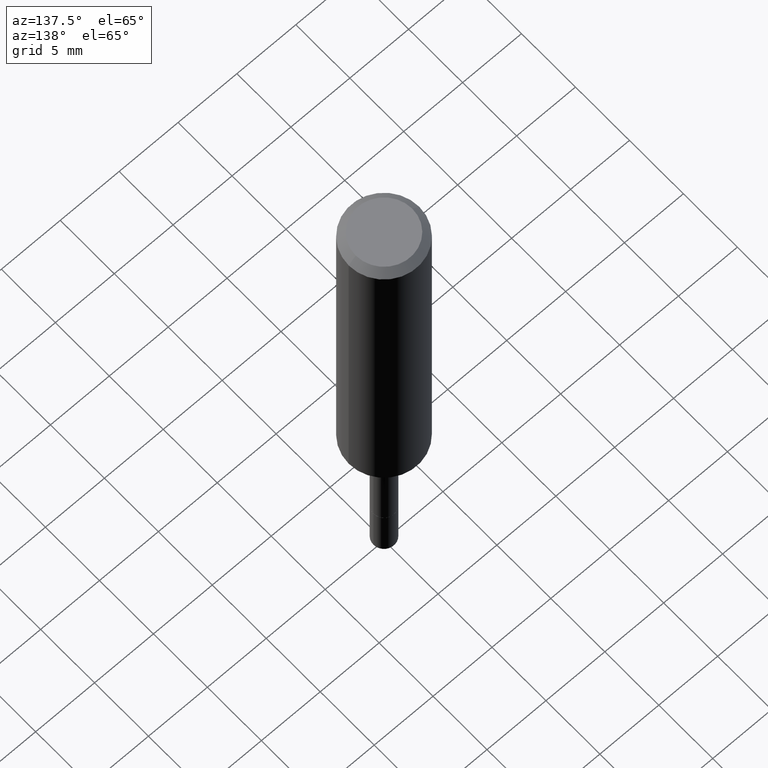
[diagram: clean part render]
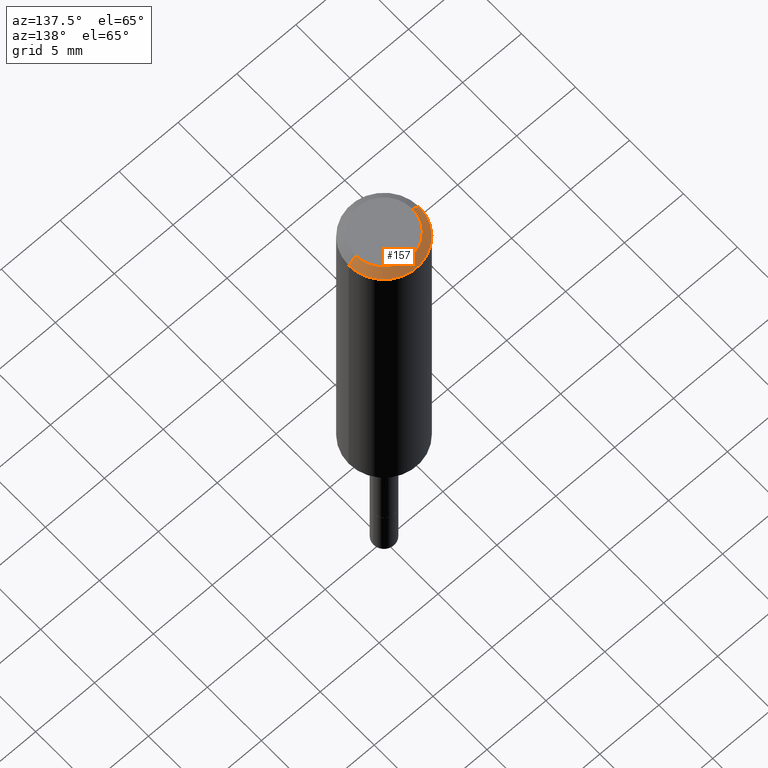
[diagram: same view with one face highlighted and labeled with its STEP entity id]
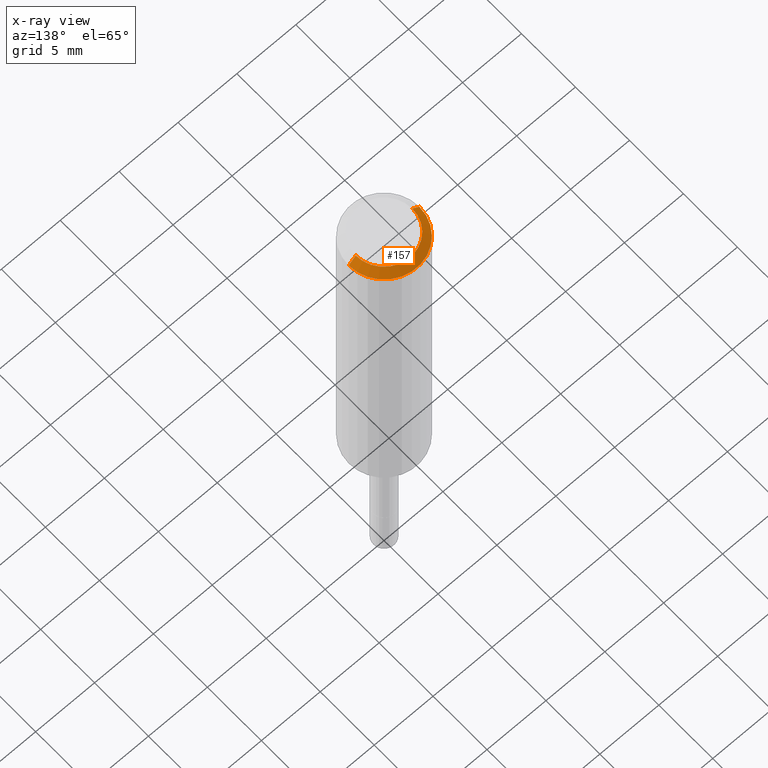
[diagram: x-ray of the same camera — body ghosted, the highlighted face saturated]
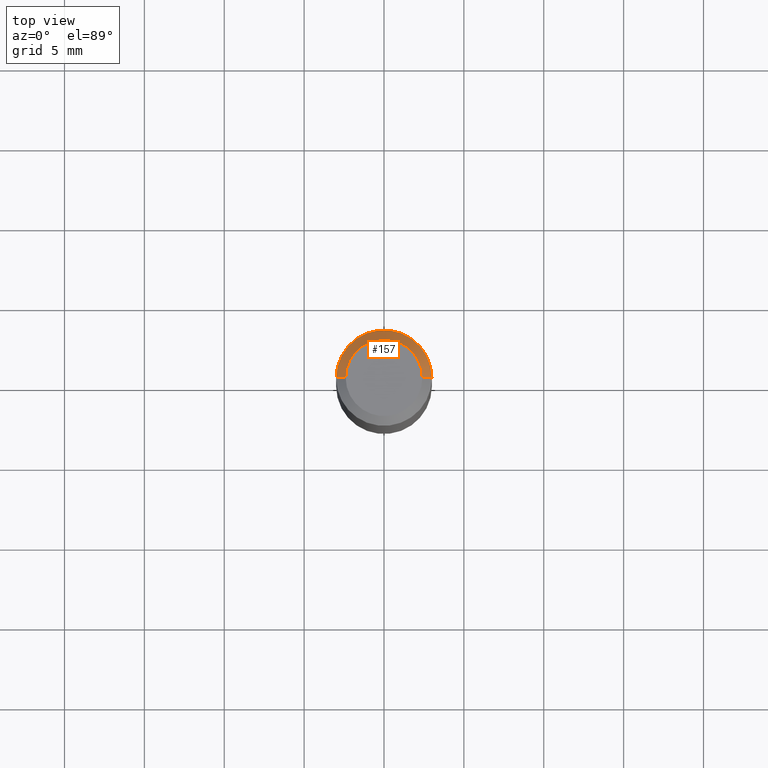
[diagram: same view with one face highlighted and labeled with its STEP entity id]
A machine part, auxiliary view. The second image highlights one B-rep face of the part: STEP entity #157.
The next image is the same camera in x-ray: the body ghosted, the highlighted face saturated — about 0% of this face is hidden behind the body in this view.
A second angle (top view) of the same face is appended — the face is thin or edge-on in the first view.
In plain terms, the highlighted conical surface has half-angle 45 deg.
Its self-contained STEP definition (entity closure, byte-faithful):
#12 = DIRECTION ( 'NONE',  ( 1.000000000000000000, -6.982962677686266711E-15, 0.000000000000000000 ) ) ;
#16 = EDGE_CURVE ( 'NONE', #393, #55, #269, .T. ) ;
#18 = CARTESIAN_POINT ( 'NONE',  ( 0.1180999999999999966, -8.926936027602933910E-16, -0.02362000000000013741 ) ) ;
#28 = EDGE_CURVE ( 'NONE', #55, #163, #118, .T. ) ;
#46 = DIRECTION ( 'NONE',  ( -0.7071067811865461294, 2.468850131082242072E-15, -0.7071067811865489050 ) ) ;
#52 = DIRECTION ( 'NONE',  ( -2.445468806185136597E-29, 3.491481338843145583E-15, 1.000000000000000000 ) ) ;
#55 = VERTEX_POINT ( 'NONE', #422 ) ;
#58 = ORIENTED_EDGE ( 'NONE', *, *, #28, .F. ) ;
#60 = DIRECTION ( 'NONE',  ( -1.000000000000000000, 6.982962677686266711E-15, 0.000000000000000000 ) ) ;
#74 = ORIENTED_EDGE ( 'NONE', *, *, #16, .F. ) ;
#100 = CARTESIAN_POINT ( 'NONE',  ( 5.776197320209326656E-31, -8.246878922347558061E-17, -0.02362000000000013741 ) ) ;
#103 = CARTESIAN_POINT ( 'NONE',  ( 0.09447999999999998066, -7.704367267948738690E-16, -3.085620075131172158E-17 ) ) ;
#118 = LINE ( 'NONE', #402, #472 ) ;
#143 = AXIS2_PLACEMENT_3D ( 'NONE', #457, #52, #12 ) ;
#157 = ADVANCED_FACE ( 'NONE', ( #244 ), #272, .T. ) ;
#158 = DIRECTION ( 'NONE',  ( -2.445468806185136597E-29, 3.491481338843145583E-15, 1.000000000000000000 ) ) ;
#163 = VERTEX_POINT ( 'NONE', #386 ) ;
#188 = ORIENTED_EDGE ( 'NONE', *, *, #239, .T. ) ;
#230 = ORIENTED_EDGE ( 'NONE', *, *, #326, .T. ) ;
#235 = DIRECTION ( 'NONE',  ( 1.000000000000000000, -6.982962677686267499E-15, 4.875432709231658792E-29 ) ) ;
#239 = EDGE_CURVE ( 'NONE', #393, #387, #367, .T. ) ;
#244 = FACE_OUTER_BOUND ( 'NONE', #341, .T. ) ;
#269 = CIRCLE ( 'NONE', #465, 0.09447999999999998066 ) ;
#272 = CONICAL_SURFACE ( 'NONE', #315, 0.1180999999999999966, 0.7853981633974463916 ) ;
#315 = AXIS2_PLACEMENT_3D ( 'NONE', #100, #343, #60 ) ;
#326 = EDGE_CURVE ( 'NONE', #387, #163, #354, .T. ) ;
#341 = EDGE_LOOP ( 'NONE', ( #74, #188, #230, #58 ) ) ;
#343 = DIRECTION ( 'NONE',  ( 2.445468806185136597E-29, -3.491481338843145583E-15, -1.000000000000000000 ) ) ;
#354 = CIRCLE ( 'NONE', #143, 0.1180999999999999966 ) ;
#367 = LINE ( 'NONE', #18, #413 ) ;
#386 = CARTESIAN_POINT ( 'NONE',  ( -0.1180999999999999966, -1.261282109333762859E-15, -0.02362000000000013741 ) ) ;
#387 = VERTEX_POINT ( 'NONE', #425 ) ;
#393 = VERTEX_POINT ( 'NONE', #103 ) ;
#402 = CARTESIAN_POINT ( 'NONE',  ( -0.1180999999999999966, 7.422191030112725094E-16, -0.02362000000000013741 ) ) ;
#413 = VECTOR ( 'NONE', #455, 39.37007874015748143 ) ;
#422 = CARTESIAN_POINT ( 'NONE',  ( -0.09447999999999998066, 7.009847083995354710E-16, -3.085620075132147757E-17 ) ) ;
#425 = CARTESIAN_POINT ( 'NONE',  ( 0.1180999999999999966, -9.071566814582237199E-16, -0.02362000000000013741 ) ) ;
#455 = DIRECTION ( 'NONE',  ( 0.7071067811865461294, -7.319954787623251312E-15, -0.7071067811865489050 ) ) ;
#457 = CARTESIAN_POINT ( 'NONE',  ( 5.776197320209326656E-31, -8.246878922347558061E-17, -0.02362000000000013741 ) ) ;
#465 = AXIS2_PLACEMENT_3D ( 'NONE', #512, #158, #235 ) ;
#472 = VECTOR ( 'NONE', #46, 39.37007874015748143 ) ;
#512 = CARTESIAN_POINT ( 'NONE',  ( 7.545787641473140628E-46, -1.077338491108201769E-31, -3.085620075131671975E-17 ) ) ;